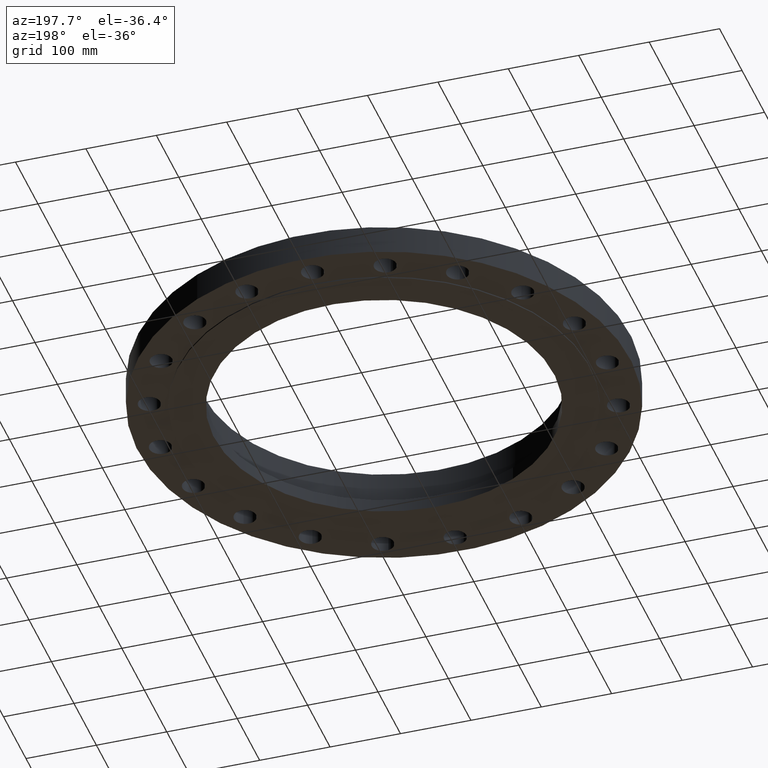
[diagram: clean part render]
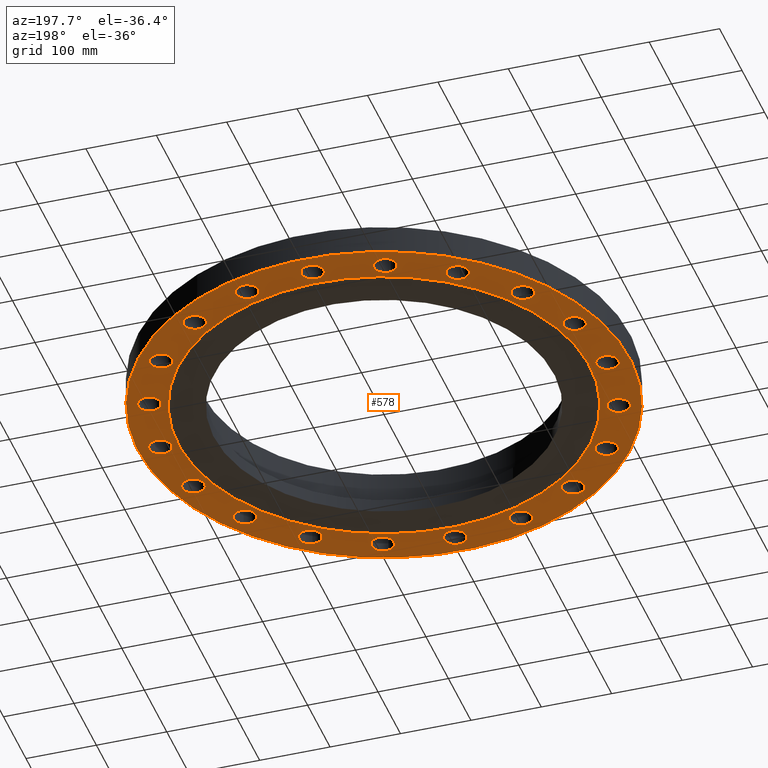
[diagram: same view with one face highlighted and labeled with its STEP entity id]
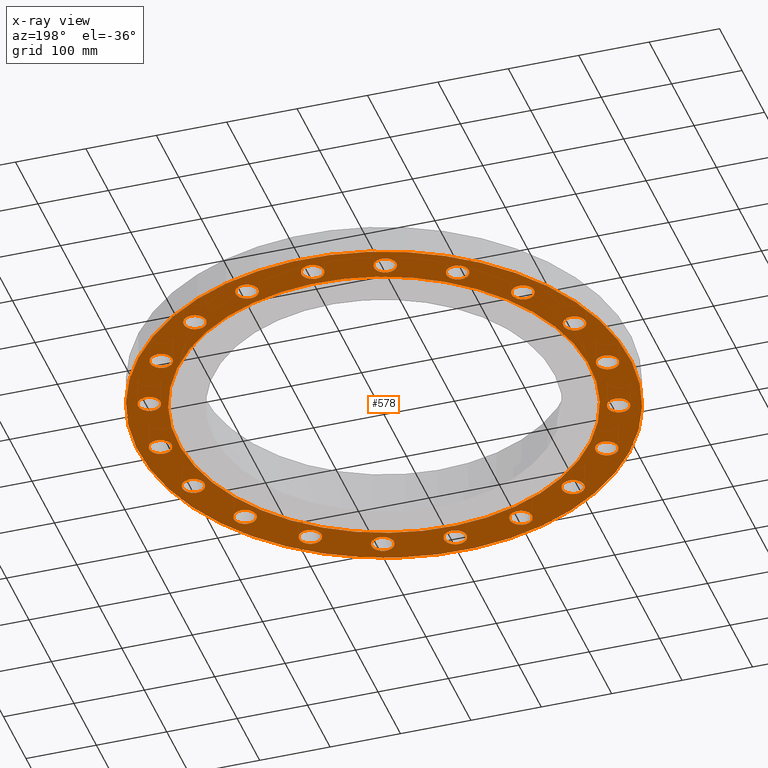
[diagram: x-ray of the same camera — body ghosted, the highlighted face saturated]
A machine part, auxiliary view. The second image highlights one B-rep face of the part: STEP entity #578.
The next image is the same camera in x-ray: the body ghosted, the highlighted face saturated — about 0% of this face is hidden behind the body in this view.
In plain terms, the highlighted planar face has unit normal (0, 0, -1).
Its self-contained STEP definition (entity closure, byte-faithful):
#162=AXIS2_PLACEMENT_3D('Circle Axis2P3D',#160,#161,$) ;
#181=AXIS2_PLACEMENT_3D('Circle Axis2P3D',#179,#180,$) ;
#194=AXIS2_PLACEMENT_3D('Plane Axis2P3D',#191,#192,#193) ;
#198=AXIS2_PLACEMENT_3D('Circle Axis2P3D',#196,#197,$) ;
#207=AXIS2_PLACEMENT_3D('Circle Axis2P3D',#205,#206,$) ;
#216=AXIS2_PLACEMENT_3D('Circle Axis2P3D',#214,#215,$) ;
#225=AXIS2_PLACEMENT_3D('Circle Axis2P3D',#223,#224,$) ;
#238=AXIS2_PLACEMENT_3D('Circle Axis2P3D',#236,#237,$) ;
#247=AXIS2_PLACEMENT_3D('Circle Axis2P3D',#245,#246,$) ;
#256=AXIS2_PLACEMENT_3D('Circle Axis2P3D',#254,#255,$) ;
#265=AXIS2_PLACEMENT_3D('Circle Axis2P3D',#263,#264,$) ;
#274=AXIS2_PLACEMENT_3D('Circle Axis2P3D',#272,#273,$) ;
#283=AXIS2_PLACEMENT_3D('Circle Axis2P3D',#281,#282,$) ;
#292=AXIS2_PLACEMENT_3D('Circle Axis2P3D',#290,#291,$) ;
#301=AXIS2_PLACEMENT_3D('Circle Axis2P3D',#299,#300,$) ;
#310=AXIS2_PLACEMENT_3D('Circle Axis2P3D',#308,#309,$) ;
#319=AXIS2_PLACEMENT_3D('Circle Axis2P3D',#317,#318,$) ;
#328=AXIS2_PLACEMENT_3D('Circle Axis2P3D',#326,#327,$) ;
#337=AXIS2_PLACEMENT_3D('Circle Axis2P3D',#335,#336,$) ;
#346=AXIS2_PLACEMENT_3D('Circle Axis2P3D',#344,#345,$) ;
#355=AXIS2_PLACEMENT_3D('Circle Axis2P3D',#353,#354,$) ;
#364=AXIS2_PLACEMENT_3D('Circle Axis2P3D',#362,#363,$) ;
#373=AXIS2_PLACEMENT_3D('Circle Axis2P3D',#371,#372,$) ;
#382=AXIS2_PLACEMENT_3D('Circle Axis2P3D',#380,#381,$) ;
#391=AXIS2_PLACEMENT_3D('Circle Axis2P3D',#389,#390,$) ;
#400=AXIS2_PLACEMENT_3D('Circle Axis2P3D',#398,#399,$) ;
#409=AXIS2_PLACEMENT_3D('Circle Axis2P3D',#407,#408,$) ;
#418=AXIS2_PLACEMENT_3D('Circle Axis2P3D',#416,#417,$) ;
#427=AXIS2_PLACEMENT_3D('Circle Axis2P3D',#425,#426,$) ;
#436=AXIS2_PLACEMENT_3D('Circle Axis2P3D',#434,#435,$) ;
#445=AXIS2_PLACEMENT_3D('Circle Axis2P3D',#443,#444,$) ;
#454=AXIS2_PLACEMENT_3D('Circle Axis2P3D',#452,#453,$) ;
#463=AXIS2_PLACEMENT_3D('Circle Axis2P3D',#461,#462,$) ;
#472=AXIS2_PLACEMENT_3D('Circle Axis2P3D',#470,#471,$) ;
#481=AXIS2_PLACEMENT_3D('Circle Axis2P3D',#479,#480,$) ;
#490=AXIS2_PLACEMENT_3D('Circle Axis2P3D',#488,#489,$) ;
#499=AXIS2_PLACEMENT_3D('Circle Axis2P3D',#497,#498,$) ;
#508=AXIS2_PLACEMENT_3D('Circle Axis2P3D',#506,#507,$) ;
#517=AXIS2_PLACEMENT_3D('Circle Axis2P3D',#515,#516,$) ;
#526=AXIS2_PLACEMENT_3D('Circle Axis2P3D',#524,#525,$) ;
#535=AXIS2_PLACEMENT_3D('Circle Axis2P3D',#533,#534,$) ;
#544=AXIS2_PLACEMENT_3D('Circle Axis2P3D',#542,#543,$) ;
#553=AXIS2_PLACEMENT_3D('Circle Axis2P3D',#551,#552,$) ;
#562=AXIS2_PLACEMENT_3D('Circle Axis2P3D',#560,#561,$) ;
#571=AXIS2_PLACEMENT_3D('Circle Axis2P3D',#569,#570,$) ;
#157=CARTESIAN_POINT('Vertex',(-5.51339369397,-10.0921994618,1.1189649382E-015)) ;
#160=CARTESIAN_POINT('Axis2P3D Location',(0.,0.,1.39870617276E-015)) ;
#164=CARTESIAN_POINT('Vertex',(5.51339369397,10.0921994618,1.1189649382E-015)) ;
#179=CARTESIAN_POINT('Axis2P3D Location',(0.,0.,1.39870617276E-015)) ;
#191=CARTESIAN_POINT('Axis2P3D Location',(0.,11.5,0.)) ;
#196=CARTESIAN_POINT('Axis2P3D Location',(0.,0.,0.)) ;
#200=CARTESIAN_POINT('Vertex',(-6.59210115583,-12.066760226,1.67844740731E-015)) ;
#202=CARTESIAN_POINT('Vertex',(6.59210115583,12.066760226,1.67844740731E-015)) ;
#205=CARTESIAN_POINT('Axis2P3D Location',(0.,0.,0.)) ;
#214=CARTESIAN_POINT('Axis2P3D Location',(12.5000000001,0.,0.)) ;
#218=CARTESIAN_POINT('Vertex',(13.0484891012,-0.299640961629,0.)) ;
#220=CARTESIAN_POINT('Vertex',(11.9515108989,0.299640961629,0.)) ;
#223=CARTESIAN_POINT('Axis2P3D Location',(12.5,0.,0.)) ;
#236=CARTESIAN_POINT('Axis2P3D Location',(11.8882064537,-3.8627124297,0.)) ;
#240=CARTESIAN_POINT('Vertex',(11.4591564693,-3.4082444871,0.)) ;
#242=CARTESIAN_POINT('Vertex',(12.3172564382,-4.3171803723,0.)) ;
#245=CARTESIAN_POINT('Axis2P3D Location',(11.8882064537,-3.8627124297,0.)) ;
#254=CARTESIAN_POINT('Axis2P3D Location',(10.1127124297,-7.34731565369,0.)) ;
#258=CARTESIAN_POINT('Vertex',(9.84509996387,-6.7825072188,0.)) ;
#260=CARTESIAN_POINT('Vertex',(10.3803248956,-7.91212408857,-1.67844740731E-015)) ;
#263=CARTESIAN_POINT('Axis2P3D Location',(10.1127124297,-7.34731565369,0.)) ;
#272=CARTESIAN_POINT('Axis2P3D Location',(7.34731565369,-10.1127124297,0.)) ;
#276=CARTESIAN_POINT('Vertex',(7.26733647913,-9.49285088741,0.)) ;
#278=CARTESIAN_POINT('Vertex',(7.42729482824,-10.732573972,0.)) ;
#281=CARTESIAN_POINT('Axis2P3D Location',(7.34731565369,-10.1127124297,0.)) ;
#290=CARTESIAN_POINT('Axis2P3D Location',(3.8627124297,-11.8882064537,0.)) ;
#294=CARTESIAN_POINT('Vertex',(3.97819546531,-11.2739681706,0.)) ;
#296=CARTESIAN_POINT('Vertex',(3.74722939409,-12.5024447369,0.)) ;
#299=CARTESIAN_POINT('Axis2P3D Location',(3.8627124297,-11.8882064537,0.)) ;
#308=CARTESIAN_POINT('Axis2P3D Location',(1.46864148139E-015,-12.5000000001,0.)) ;
#312=CARTESIAN_POINT('Vertex',(0.299640961629,-11.9515108989,0.)) ;
#314=CARTESIAN_POINT('Vertex',(-0.299640961629,-13.0484891012,0.)) ;
#317=CARTESIAN_POINT('Axis2P3D Location',(1.39870617276E-015,-12.5000000001,0.)) ;
#326=CARTESIAN_POINT('Axis2P3D Location',(-3.8627124297,-11.8882064537,0.)) ;
#330=CARTESIAN_POINT('Vertex',(-3.4082444871,-11.4591564693,0.)) ;
#332=CARTESIAN_POINT('Vertex',(-4.3171803723,-12.3172564382,0.)) ;
#335=CARTESIAN_POINT('Axis2P3D Location',(-3.8627124297,-11.8882064537,0.)) ;
#344=CARTESIAN_POINT('Axis2P3D Location',(-7.34731565369,-10.1127124297,0.)) ;
#348=CARTESIAN_POINT('Vertex',(-6.7825072188,-9.84509996387,0.)) ;
#350=CARTESIAN_POINT('Vertex',(-7.91212408857,-10.3803248956,0.)) ;
#353=CARTESIAN_POINT('Axis2P3D Location',(-7.34731565369,-10.1127124297,0.)) ;
#362=CARTESIAN_POINT('Axis2P3D Location',(-10.1127124297,-7.34731565369,0.)) ;
#366=CARTESIAN_POINT('Vertex',(-9.49285088741,-7.26733647913,0.)) ;
#368=CARTESIAN_POINT('Vertex',(-10.732573972,-7.42729482824,0.)) ;
#371=CARTESIAN_POINT('Axis2P3D Location',(-10.1127124297,-7.34731565369,0.)) ;
#380=CARTESIAN_POINT('Axis2P3D Location',(-11.8882064537,-3.8627124297,0.)) ;
#384=CARTESIAN_POINT('Vertex',(-11.2739681706,-3.97819546531,0.)) ;
#386=CARTESIAN_POINT('Vertex',(-12.5024447369,-3.74722939409,0.)) ;
#389=CARTESIAN_POINT('Axis2P3D Location',(-11.8882064537,-3.8627124297,0.)) ;
#398=CARTESIAN_POINT('Axis2P3D Location',(-12.5000000001,-6.71378962923E-015,0.)) ;
#402=CARTESIAN_POINT('Vertex',(-11.9515108989,-0.299640961629,0.)) ;
#404=CARTESIAN_POINT('Vertex',(-13.0484891012,0.299640961629,0.)) ;
#407=CARTESIAN_POINT('Axis2P3D Location',(-12.5000000001,-6.71378962923E-015,0.)) ;
#416=CARTESIAN_POINT('Axis2P3D Location',(-11.8882064537,3.8627124297,0.)) ;
#420=CARTESIAN_POINT('Vertex',(-11.4591564693,3.4082444871,0.)) ;
#422=CARTESIAN_POINT('Vertex',(-12.3172564382,4.3171803723,0.)) ;
#425=CARTESIAN_POINT('Axis2P3D Location',(-11.8882064537,3.8627124297,0.)) ;
#434=CARTESIAN_POINT('Axis2P3D Location',(-10.1127124297,7.34731565369,0.)) ;
#438=CARTESIAN_POINT('Vertex',(-9.84509996387,6.7825072188,0.)) ;
#440=CARTESIAN_POINT('Vertex',(-10.3803248956,7.91212408857,-1.67844740731E-015)) ;
#443=CARTESIAN_POINT('Axis2P3D Location',(-10.1127124297,7.34731565369,0.)) ;
#452=CARTESIAN_POINT('Axis2P3D Location',(-7.34731565369,10.1127124297,0.)) ;
#456=CARTESIAN_POINT('Vertex',(-7.26733647913,9.49285088741,0.)) ;
#458=CARTESIAN_POINT('Vertex',(-7.42729482824,10.732573972,0.)) ;
#461=CARTESIAN_POINT('Axis2P3D Location',(-7.34731565369,10.1127124297,0.)) ;
#470=CARTESIAN_POINT('Axis2P3D Location',(-3.8627124297,11.8882064537,0.)) ;
#474=CARTESIAN_POINT('Vertex',(-3.97819546531,11.2739681706,0.)) ;
#476=CARTESIAN_POINT('Vertex',(-3.74722939409,12.5024447369,-1.67844740731E-015)) ;
#479=CARTESIAN_POINT('Axis2P3D Location',(-3.8627124297,11.8882064537,0.)) ;
#488=CARTESIAN_POINT('Axis2P3D Location',(-1.43367382708E-014,12.5000000001,0.)) ;
#492=CARTESIAN_POINT('Vertex',(-0.299640961629,11.9515108989,0.)) ;
#494=CARTESIAN_POINT('Vertex',(0.299640961629,13.0484891012,0.)) ;
#497=CARTESIAN_POINT('Axis2P3D Location',(-1.25184202462E-014,12.5000000001,0.)) ;
#506=CARTESIAN_POINT('Axis2P3D Location',(3.8627124297,11.8882064537,0.)) ;
#510=CARTESIAN_POINT('Vertex',(3.4082444871,11.4591564693,0.)) ;
#512=CARTESIAN_POINT('Vertex',(4.3171803723,12.3172564382,-1.67844740731E-015)) ;
#515=CARTESIAN_POINT('Axis2P3D Location',(3.8627124297,11.8882064537,0.)) ;
#524=CARTESIAN_POINT('Axis2P3D Location',(7.34731565369,10.1127124297,0.)) ;
#528=CARTESIAN_POINT('Vertex',(6.7825072188,9.84509996387,0.)) ;
#530=CARTESIAN_POINT('Vertex',(7.91212408857,10.3803248956,0.)) ;
#533=CARTESIAN_POINT('Axis2P3D Location',(7.34731565369,10.1127124297,0.)) ;
#542=CARTESIAN_POINT('Axis2P3D Location',(10.1127124297,7.34731565369,0.)) ;
#546=CARTESIAN_POINT('Vertex',(9.49285088741,7.26733647913,0.)) ;
#548=CARTESIAN_POINT('Vertex',(10.732573972,7.42729482824,0.)) ;
#551=CARTESIAN_POINT('Axis2P3D Location',(10.1127124297,7.34731565369,0.)) ;
#560=CARTESIAN_POINT('Axis2P3D Location',(11.8882064537,3.8627124297,0.)) ;
#564=CARTESIAN_POINT('Vertex',(11.2739681706,3.97819546531,0.)) ;
#566=CARTESIAN_POINT('Vertex',(12.5024447369,3.74722939409,-1.67844740731E-015)) ;
#569=CARTESIAN_POINT('Axis2P3D Location',(11.8882064537,3.8627124297,0.)) ;
#161=DIRECTION('Axis2P3D Direction',(0.,0.,-0.0393700787402)) ;
#180=DIRECTION('Axis2P3D Direction',(0.,0.,-0.0393700787402)) ;
#192=DIRECTION('Axis2P3D Direction',(0.,0.,-0.0393700787402)) ;
#193=DIRECTION('Axis2P3D XDirection',(0.0393700787402,0.,0.)) ;
#197=DIRECTION('Axis2P3D Direction',(0.,0.,-0.0393700787402)) ;
#206=DIRECTION('Axis2P3D Direction',(0.,0.,-0.0393700787402)) ;
#215=DIRECTION('Axis2P3D Direction',(0.,0.,-0.0393700787402)) ;
#224=DIRECTION('Axis2P3D Direction',(0.,0.,-0.0393700787402)) ;
#237=DIRECTION('Axis2P3D Direction',(0.,0.,-0.0393700787402)) ;
#246=DIRECTION('Axis2P3D Direction',(0.,0.,-0.0393700787402)) ;
#255=DIRECTION('Axis2P3D Direction',(0.,0.,-0.0393700787402)) ;
#264=DIRECTION('Axis2P3D Direction',(0.,0.,-0.0393700787402)) ;
#273=DIRECTION('Axis2P3D Direction',(0.,0.,-0.0393700787402)) ;
#282=DIRECTION('Axis2P3D Direction',(0.,0.,-0.0393700787402)) ;
#291=DIRECTION('Axis2P3D Direction',(0.,0.,-0.0393700787402)) ;
#300=DIRECTION('Axis2P3D Direction',(0.,0.,-0.0393700787402)) ;
#309=DIRECTION('Axis2P3D Direction',(0.,0.,-0.0393700787402)) ;
#318=DIRECTION('Axis2P3D Direction',(0.,0.,-0.0393700787402)) ;
#327=DIRECTION('Axis2P3D Direction',(0.,0.,-0.0393700787402)) ;
#336=DIRECTION('Axis2P3D Direction',(0.,0.,-0.0393700787402)) ;
#345=DIRECTION('Axis2P3D Direction',(0.,0.,-0.0393700787402)) ;
#354=DIRECTION('Axis2P3D Direction',(0.,0.,-0.0393700787402)) ;
#363=DIRECTION('Axis2P3D Direction',(0.,0.,-0.0393700787402)) ;
#372=DIRECTION('Axis2P3D Direction',(0.,0.,-0.0393700787402)) ;
#381=DIRECTION('Axis2P3D Direction',(0.,0.,-0.0393700787402)) ;
#390=DIRECTION('Axis2P3D Direction',(0.,0.,-0.0393700787402)) ;
#399=DIRECTION('Axis2P3D Direction',(0.,0.,-0.0393700787402)) ;
#408=DIRECTION('Axis2P3D Direction',(0.,0.,-0.0393700787402)) ;
#417=DIRECTION('Axis2P3D Direction',(0.,0.,-0.0393700787402)) ;
#426=DIRECTION('Axis2P3D Direction',(0.,0.,-0.0393700787402)) ;
#435=DIRECTION('Axis2P3D Direction',(0.,0.,-0.0393700787402)) ;
#444=DIRECTION('Axis2P3D Direction',(0.,0.,-0.0393700787402)) ;
#453=DIRECTION('Axis2P3D Direction',(0.,0.,-0.0393700787402)) ;
#462=DIRECTION('Axis2P3D Direction',(0.,0.,-0.0393700787402)) ;
#471=DIRECTION('Axis2P3D Direction',(0.,0.,-0.0393700787402)) ;
#480=DIRECTION('Axis2P3D Direction',(0.,0.,-0.0393700787402)) ;
#489=DIRECTION('Axis2P3D Direction',(0.,0.,-0.0393700787402)) ;
#498=DIRECTION('Axis2P3D Direction',(0.,0.,-0.0393700787402)) ;
#507=DIRECTION('Axis2P3D Direction',(0.,0.,-0.0393700787402)) ;
#516=DIRECTION('Axis2P3D Direction',(0.,0.,-0.0393700787402)) ;
#525=DIRECTION('Axis2P3D Direction',(0.,0.,-0.0393700787402)) ;
#534=DIRECTION('Axis2P3D Direction',(0.,0.,-0.0393700787402)) ;
#543=DIRECTION('Axis2P3D Direction',(0.,0.,-0.0393700787402)) ;
#552=DIRECTION('Axis2P3D Direction',(0.,0.,-0.0393700787402)) ;
#561=DIRECTION('Axis2P3D Direction',(0.,0.,-0.0393700787402)) ;
#570=DIRECTION('Axis2P3D Direction',(0.,0.,-0.0393700787402)) ;
#211=ORIENTED_EDGE('',*,*,#204,.T.) ;
#212=ORIENTED_EDGE('',*,*,#209,.T.) ;
#229=ORIENTED_EDGE('',*,*,#222,.F.) ;
#230=ORIENTED_EDGE('',*,*,#227,.F.) ;
#233=ORIENTED_EDGE('',*,*,#183,.F.) ;
#234=ORIENTED_EDGE('',*,*,#166,.F.) ;
#251=ORIENTED_EDGE('',*,*,#244,.F.) ;
#252=ORIENTED_EDGE('',*,*,#249,.F.) ;
#269=ORIENTED_EDGE('',*,*,#262,.F.) ;
#270=ORIENTED_EDGE('',*,*,#267,.F.) ;
#287=ORIENTED_EDGE('',*,*,#280,.F.) ;
#288=ORIENTED_EDGE('',*,*,#285,.F.) ;
#305=ORIENTED_EDGE('',*,*,#298,.F.) ;
#306=ORIENTED_EDGE('',*,*,#303,.F.) ;
#323=ORIENTED_EDGE('',*,*,#316,.F.) ;
#324=ORIENTED_EDGE('',*,*,#321,.F.) ;
#341=ORIENTED_EDGE('',*,*,#334,.F.) ;
#342=ORIENTED_EDGE('',*,*,#339,.F.) ;
#359=ORIENTED_EDGE('',*,*,#352,.F.) ;
#360=ORIENTED_EDGE('',*,*,#357,.F.) ;
#377=ORIENTED_EDGE('',*,*,#370,.F.) ;
#378=ORIENTED_EDGE('',*,*,#375,.F.) ;
#395=ORIENTED_EDGE('',*,*,#388,.F.) ;
#396=ORIENTED_EDGE('',*,*,#393,.F.) ;
#413=ORIENTED_EDGE('',*,*,#406,.F.) ;
#414=ORIENTED_EDGE('',*,*,#411,.F.) ;
#431=ORIENTED_EDGE('',*,*,#424,.F.) ;
#432=ORIENTED_EDGE('',*,*,#429,.F.) ;
#449=ORIENTED_EDGE('',*,*,#442,.F.) ;
#450=ORIENTED_EDGE('',*,*,#447,.F.) ;
#467=ORIENTED_EDGE('',*,*,#460,.F.) ;
#468=ORIENTED_EDGE('',*,*,#465,.F.) ;
#485=ORIENTED_EDGE('',*,*,#478,.F.) ;
#486=ORIENTED_EDGE('',*,*,#483,.F.) ;
#503=ORIENTED_EDGE('',*,*,#496,.F.) ;
#504=ORIENTED_EDGE('',*,*,#501,.F.) ;
#521=ORIENTED_EDGE('',*,*,#514,.F.) ;
#522=ORIENTED_EDGE('',*,*,#519,.F.) ;
#539=ORIENTED_EDGE('',*,*,#532,.F.) ;
#540=ORIENTED_EDGE('',*,*,#537,.F.) ;
#557=ORIENTED_EDGE('',*,*,#550,.F.) ;
#558=ORIENTED_EDGE('',*,*,#555,.F.) ;
#575=ORIENTED_EDGE('',*,*,#568,.F.) ;
#576=ORIENTED_EDGE('',*,*,#573,.F.) ;
#231=FACE_BOUND('',#228,.T.) ;
#235=FACE_BOUND('',#232,.T.) ;
#253=FACE_BOUND('',#250,.T.) ;
#271=FACE_BOUND('',#268,.T.) ;
#289=FACE_BOUND('',#286,.T.) ;
#307=FACE_BOUND('',#304,.T.) ;
#325=FACE_BOUND('',#322,.T.) ;
#343=FACE_BOUND('',#340,.T.) ;
#361=FACE_BOUND('',#358,.T.) ;
#379=FACE_BOUND('',#376,.T.) ;
#397=FACE_BOUND('',#394,.T.) ;
#415=FACE_BOUND('',#412,.T.) ;
#433=FACE_BOUND('',#430,.T.) ;
#451=FACE_BOUND('',#448,.T.) ;
#469=FACE_BOUND('',#466,.T.) ;
#487=FACE_BOUND('',#484,.T.) ;
#505=FACE_BOUND('',#502,.T.) ;
#523=FACE_BOUND('',#520,.T.) ;
#541=FACE_BOUND('',#538,.T.) ;
#559=FACE_BOUND('',#556,.T.) ;
#577=FACE_BOUND('',#574,.T.) ;
#578=ADVANCED_FACE('PartBody',(#213,#231,#235,#253,#271,#289,#307,#325,#343,#361,#379,#397,#415,#433,#451,#469,#487,#505,#523,#541,#559,#577),#195,.T.) ;
#163=CIRCLE('generated circle',#162,11.5) ;
#182=CIRCLE('generated circle',#181,11.5) ;
#199=CIRCLE('generated circle',#198,13.7500000001) ;
#208=CIRCLE('generated circle',#207,13.7500000001) ;
#217=CIRCLE('generated circle',#216,0.625000000002) ;
#226=CIRCLE('generated circle',#225,0.625000000002) ;
#239=CIRCLE('generated circle',#238,0.625000000002) ;
#248=CIRCLE('generated circle',#247,0.625000000002) ;
#257=CIRCLE('generated circle',#256,0.625000000003) ;
#266=CIRCLE('generated circle',#265,0.625000000003) ;
#275=CIRCLE('generated circle',#274,0.625000000003) ;
#284=CIRCLE('generated circle',#283,0.625000000003) ;
#293=CIRCLE('generated circle',#292,0.625000000002) ;
#302=CIRCLE('generated circle',#301,0.625000000002) ;
#311=CIRCLE('generated circle',#310,0.625000000002) ;
#320=CIRCLE('generated circle',#319,0.625000000002) ;
#329=CIRCLE('generated circle',#328,0.625000000002) ;
#338=CIRCLE('generated circle',#337,0.625000000002) ;
#347=CIRCLE('generated circle',#346,0.625000000003) ;
#356=CIRCLE('generated circle',#355,0.625000000003) ;
#365=CIRCLE('generated circle',#364,0.625000000003) ;
#374=CIRCLE('generated circle',#373,0.625000000003) ;
#383=CIRCLE('generated circle',#382,0.625000000002) ;
#392=CIRCLE('generated circle',#391,0.625000000002) ;
#401=CIRCLE('generated circle',#400,0.625000000003) ;
#410=CIRCLE('generated circle',#409,0.625000000003) ;
#419=CIRCLE('generated circle',#418,0.625000000002) ;
#428=CIRCLE('generated circle',#427,0.625000000002) ;
#437=CIRCLE('generated circle',#436,0.625000000003) ;
#446=CIRCLE('generated circle',#445,0.625000000003) ;
#455=CIRCLE('generated circle',#454,0.625000000003) ;
#464=CIRCLE('generated circle',#463,0.625000000003) ;
#473=CIRCLE('generated circle',#472,0.625000000003) ;
#482=CIRCLE('generated circle',#481,0.625000000003) ;
#491=CIRCLE('generated circle',#490,0.625000000002) ;
#500=CIRCLE('generated circle',#499,0.625000000002) ;
#509=CIRCLE('generated circle',#508,0.625000000002) ;
#518=CIRCLE('generated circle',#517,0.625000000002) ;
#527=CIRCLE('generated circle',#526,0.625000000003) ;
#536=CIRCLE('generated circle',#535,0.625000000003) ;
#545=CIRCLE('generated circle',#544,0.625000000003) ;
#554=CIRCLE('generated circle',#553,0.625000000003) ;
#563=CIRCLE('generated circle',#562,0.625000000003) ;
#572=CIRCLE('generated circle',#571,0.625000000003) ;
#166=EDGE_CURVE('',#158,#165,#163,.T.) ;
#183=EDGE_CURVE('',#165,#158,#182,.T.) ;
#204=EDGE_CURVE('',#201,#203,#199,.T.) ;
#209=EDGE_CURVE('',#203,#201,#208,.T.) ;
#222=EDGE_CURVE('',#219,#221,#217,.T.) ;
#227=EDGE_CURVE('',#221,#219,#226,.T.) ;
#244=EDGE_CURVE('',#241,#243,#239,.T.) ;
#249=EDGE_CURVE('',#243,#241,#248,.T.) ;
#262=EDGE_CURVE('',#259,#261,#257,.T.) ;
#267=EDGE_CURVE('',#261,#259,#266,.T.) ;
#280=EDGE_CURVE('',#277,#279,#275,.T.) ;
#285=EDGE_CURVE('',#279,#277,#284,.T.) ;
#298=EDGE_CURVE('',#295,#297,#293,.T.) ;
#303=EDGE_CURVE('',#297,#295,#302,.T.) ;
#316=EDGE_CURVE('',#313,#315,#311,.T.) ;
#321=EDGE_CURVE('',#315,#313,#320,.T.) ;
#334=EDGE_CURVE('',#331,#333,#329,.T.) ;
#339=EDGE_CURVE('',#333,#331,#338,.T.) ;
#352=EDGE_CURVE('',#349,#351,#347,.T.) ;
#357=EDGE_CURVE('',#351,#349,#356,.T.) ;
#370=EDGE_CURVE('',#367,#369,#365,.T.) ;
#375=EDGE_CURVE('',#369,#367,#374,.T.) ;
#388=EDGE_CURVE('',#385,#387,#383,.T.) ;
#393=EDGE_CURVE('',#387,#385,#392,.T.) ;
#406=EDGE_CURVE('',#403,#405,#401,.T.) ;
#411=EDGE_CURVE('',#405,#403,#410,.T.) ;
#424=EDGE_CURVE('',#421,#423,#419,.T.) ;
#429=EDGE_CURVE('',#423,#421,#428,.T.) ;
#442=EDGE_CURVE('',#439,#441,#437,.T.) ;
#447=EDGE_CURVE('',#441,#439,#446,.T.) ;
#460=EDGE_CURVE('',#457,#459,#455,.T.) ;
#465=EDGE_CURVE('',#459,#457,#464,.T.) ;
#478=EDGE_CURVE('',#475,#477,#473,.T.) ;
#483=EDGE_CURVE('',#477,#475,#482,.T.) ;
#496=EDGE_CURVE('',#493,#495,#491,.T.) ;
#501=EDGE_CURVE('',#495,#493,#500,.T.) ;
#514=EDGE_CURVE('',#511,#513,#509,.T.) ;
#519=EDGE_CURVE('',#513,#511,#518,.T.) ;
#532=EDGE_CURVE('',#529,#531,#527,.T.) ;
#537=EDGE_CURVE('',#531,#529,#536,.T.) ;
#550=EDGE_CURVE('',#547,#549,#545,.T.) ;
#555=EDGE_CURVE('',#549,#547,#554,.T.) ;
#568=EDGE_CURVE('',#565,#567,#563,.T.) ;
#573=EDGE_CURVE('',#567,#565,#572,.T.) ;
#210=EDGE_LOOP('',(#211,#212)) ;
#228=EDGE_LOOP('',(#229,#230)) ;
#232=EDGE_LOOP('',(#233,#234)) ;
#250=EDGE_LOOP('',(#251,#252)) ;
#268=EDGE_LOOP('',(#269,#270)) ;
#286=EDGE_LOOP('',(#287,#288)) ;
#304=EDGE_LOOP('',(#305,#306)) ;
#322=EDGE_LOOP('',(#323,#324)) ;
#340=EDGE_LOOP('',(#341,#342)) ;
#358=EDGE_LOOP('',(#359,#360)) ;
#376=EDGE_LOOP('',(#377,#378)) ;
#394=EDGE_LOOP('',(#395,#396)) ;
#412=EDGE_LOOP('',(#413,#414)) ;
#430=EDGE_LOOP('',(#431,#432)) ;
#448=EDGE_LOOP('',(#449,#450)) ;
#466=EDGE_LOOP('',(#467,#468)) ;
#484=EDGE_LOOP('',(#485,#486)) ;
#502=EDGE_LOOP('',(#503,#504)) ;
#520=EDGE_LOOP('',(#521,#522)) ;
#538=EDGE_LOOP('',(#539,#540)) ;
#556=EDGE_LOOP('',(#557,#558)) ;
#574=EDGE_LOOP('',(#575,#576)) ;
#213=FACE_OUTER_BOUND('',#210,.T.) ;
#195=PLANE('',#194) ;
#158=VERTEX_POINT('',#157) ;
#165=VERTEX_POINT('',#164) ;
#201=VERTEX_POINT('',#200) ;
#203=VERTEX_POINT('',#202) ;
#219=VERTEX_POINT('',#218) ;
#221=VERTEX_POINT('',#220) ;
#241=VERTEX_POINT('',#240) ;
#243=VERTEX_POINT('',#242) ;
#259=VERTEX_POINT('',#258) ;
#261=VERTEX_POINT('',#260) ;
#277=VERTEX_POINT('',#276) ;
#279=VERTEX_POINT('',#278) ;
#295=VERTEX_POINT('',#294) ;
#297=VERTEX_POINT('',#296) ;
#313=VERTEX_POINT('',#312) ;
#315=VERTEX_POINT('',#314) ;
#331=VERTEX_POINT('',#330) ;
#333=VERTEX_POINT('',#332) ;
#349=VERTEX_POINT('',#348) ;
#351=VERTEX_POINT('',#350) ;
#367=VERTEX_POINT('',#366) ;
#369=VERTEX_POINT('',#368) ;
#385=VERTEX_POINT('',#384) ;
#387=VERTEX_POINT('',#386) ;
#403=VERTEX_POINT('',#402) ;
#405=VERTEX_POINT('',#404) ;
#421=VERTEX_POINT('',#420) ;
#423=VERTEX_POINT('',#422) ;
#439=VERTEX_POINT('',#438) ;
#441=VERTEX_POINT('',#440) ;
#457=VERTEX_POINT('',#456) ;
#459=VERTEX_POINT('',#458) ;
#475=VERTEX_POINT('',#474) ;
#477=VERTEX_POINT('',#476) ;
#493=VERTEX_POINT('',#492) ;
#495=VERTEX_POINT('',#494) ;
#511=VERTEX_POINT('',#510) ;
#513=VERTEX_POINT('',#512) ;
#529=VERTEX_POINT('',#528) ;
#531=VERTEX_POINT('',#530) ;
#547=VERTEX_POINT('',#546) ;
#549=VERTEX_POINT('',#548) ;
#565=VERTEX_POINT('',#564) ;
#567=VERTEX_POINT('',#566) ;